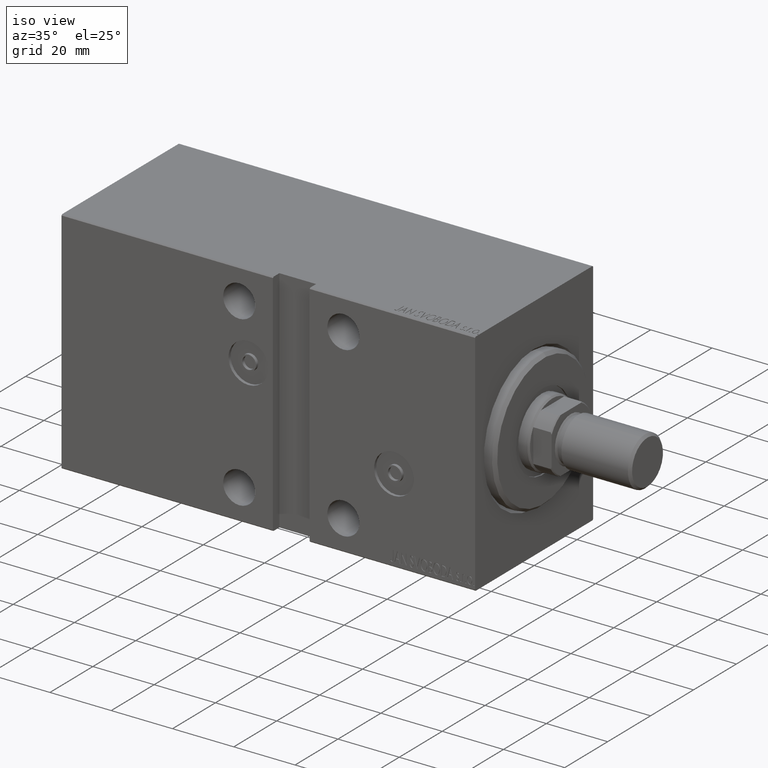
[diagram: clean part render]
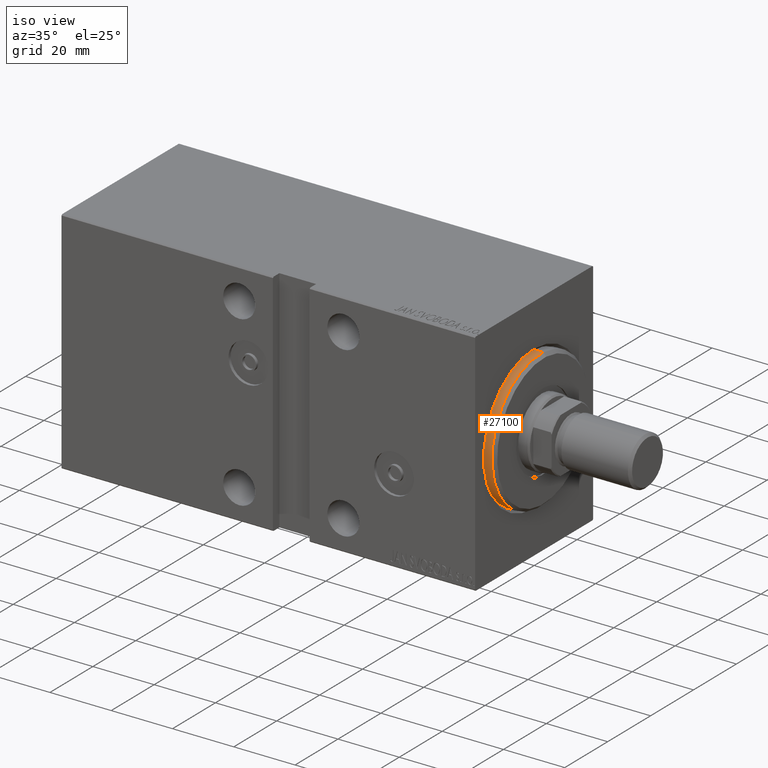
[diagram: same view with one face highlighted and labeled with its STEP entity id]
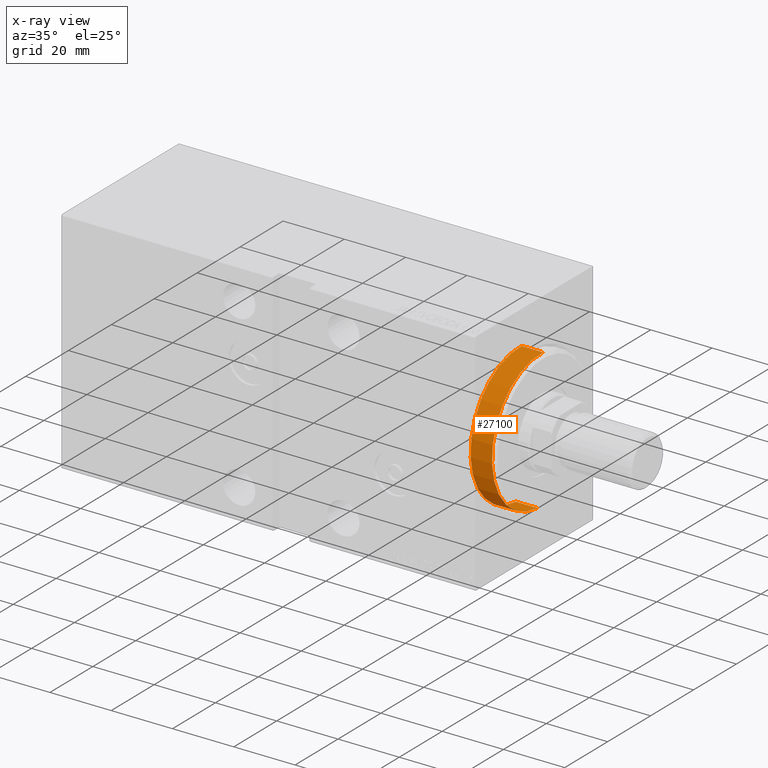
[diagram: x-ray of the same camera — body ghosted, the highlighted face saturated]
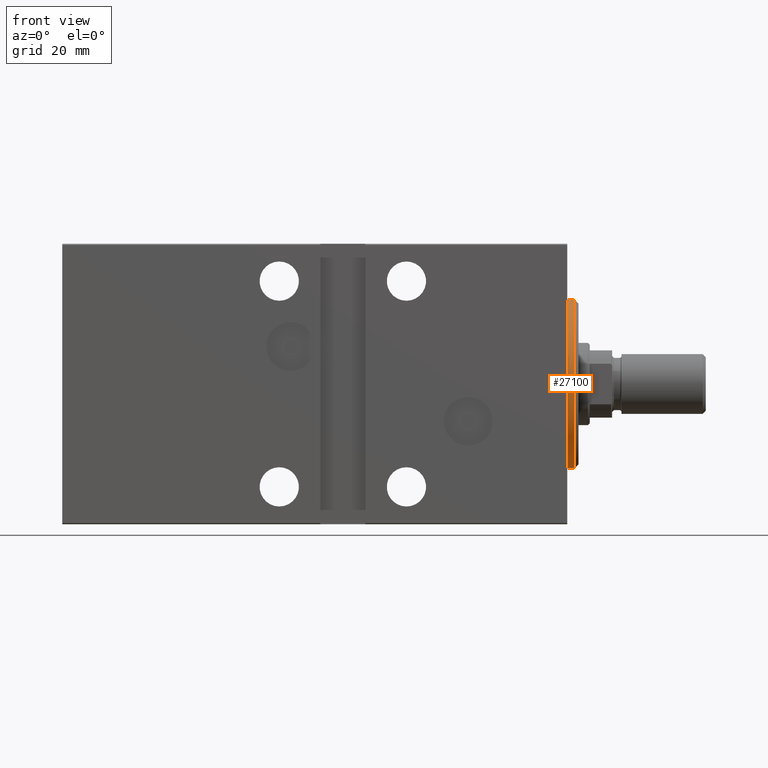
[diagram: same view with one face highlighted and labeled with its STEP entity id]
A machine part, iso view. The second image highlights one B-rep face of the part: STEP entity #27100.
The next image is the same camera in x-ray: the body ghosted, the highlighted face saturated — about 0% of this face is hidden behind the body in this view.
A second angle (front view) of the same face is appended — the face is thin or edge-on in the first view.
In plain terms, the highlighted cylindrical surface (partial cylindrical patch) has radius 22.5 mm, axis along (-1, 0, 0).
Its self-contained STEP definition (entity closure, byte-faithful):
#2188 = DIRECTION ( 'NONE',  ( 0.000000000000000000, 0.000000000000000000, -1.000000000000000000 ) ) ;
#2891 = AXIS2_PLACEMENT_3D ( 'NONE', #7426, #34681, #20850 ) ;
#5337 = VERTEX_POINT ( 'NONE', #24295 ) ;
#6798 = EDGE_CURVE ( 'NONE', #8190, #42109, #30235, .T. ) ;
#7363 = LINE ( 'NONE', #11581, #42997 ) ;
#7426 = CARTESIAN_POINT ( 'NONE',  ( -5.000000000000000000, 0.000000000000000000, 0.000000000000000000 ) ) ;
#7499 = EDGE_CURVE ( 'NONE', #8190, #5337, #16500, .T. ) ;
#7845 = CARTESIAN_POINT ( 'NONE',  ( -5.000000000000000000, 0.000000000000000000, 22.50000000000000355 ) ) ;
#8190 = VERTEX_POINT ( 'NONE', #27493 ) ;
#9242 = DIRECTION ( 'NONE',  ( 0.000000000000000000, 0.000000000000000000, 1.000000000000000000 ) ) ;
#11581 = CARTESIAN_POINT ( 'NONE',  ( 3.000000000000000000, 0.000000000000000000, 22.50000000000000355 ) ) ;
#13250 = FACE_OUTER_BOUND ( 'NONE', #38164, .T. ) ;
#16500 = CIRCLE ( 'NONE', #18632, 22.50000000000000355 ) ;
#18632 = AXIS2_PLACEMENT_3D ( 'NONE', #22326, #26098, #2188 ) ;
#20850 = DIRECTION ( 'NONE',  ( 0.000000000000000000, 0.000000000000000000, 1.000000000000000000 ) ) ;
#22326 = CARTESIAN_POINT ( 'NONE',  ( 1.999999999999999112, 0.000000000000000000, 0.000000000000000000 ) ) ;
#23755 = ORIENTED_EDGE ( 'NONE', *, *, #38312, .F. ) ;
#24295 = CARTESIAN_POINT ( 'NONE',  ( 1.999999999999999112, 0.000000000000000000, 22.50000000000000355 ) ) ;
#26098 = DIRECTION ( 'NONE',  ( -1.000000000000000000, 0.000000000000000000, 0.000000000000000000 ) ) ;
#26240 = AXIS2_PLACEMENT_3D ( 'NONE', #30244, #39853, #9242 ) ;
#26653 = CARTESIAN_POINT ( 'NONE',  ( 3.000000000000000000, 2.755455298081545172E-15, -22.50000000000000355 ) ) ;
#27100 = ADVANCED_FACE ( 'NONE', ( #13250 ), #30458, .T. ) ;
#27493 = CARTESIAN_POINT ( 'NONE',  ( 1.999999999999999112, 2.755455298081545172E-15, -22.50000000000000355 ) ) ;
#30235 = LINE ( 'NONE', #26653, #31457 ) ;
#30244 = CARTESIAN_POINT ( 'NONE',  ( 3.000000000000000000, 0.000000000000000000, 0.000000000000000000 ) ) ;
#30458 = CYLINDRICAL_SURFACE ( 'NONE', #26240, 22.50000000000000355 ) ;
#31457 = VECTOR ( 'NONE', #39629, 1000.000000000000000 ) ;
#34681 = DIRECTION ( 'NONE',  ( -1.000000000000000000, 0.000000000000000000, 0.000000000000000000 ) ) ;
#35477 = DIRECTION ( 'NONE',  ( -1.000000000000000000, -0.000000000000000000, -0.000000000000000000 ) ) ;
#35717 = CIRCLE ( 'NONE', #2891, 22.50000000000000355 ) ;
#36846 = ORIENTED_EDGE ( 'NONE', *, *, #6798, .F. ) ;
#36880 = ORIENTED_EDGE ( 'NONE', *, *, #42786, .T. ) ;
#38164 = EDGE_LOOP ( 'NONE', ( #36846, #40201, #36880, #23755 ) ) ;
#38312 = EDGE_CURVE ( 'NONE', #42109, #43379, #35717, .T. ) ;
#39629 = DIRECTION ( 'NONE',  ( -1.000000000000000000, -0.000000000000000000, -0.000000000000000000 ) ) ;
#39853 = DIRECTION ( 'NONE',  ( -1.000000000000000000, -0.000000000000000000, -0.000000000000000000 ) ) ;
#40201 = ORIENTED_EDGE ( 'NONE', *, *, #7499, .T. ) ;
#42109 = VERTEX_POINT ( 'NONE', #43016 ) ;
#42786 = EDGE_CURVE ( 'NONE', #5337, #43379, #7363, .T. ) ;
#42997 = VECTOR ( 'NONE', #35477, 1000.000000000000000 ) ;
#43016 = CARTESIAN_POINT ( 'NONE',  ( -5.000000000000000000, 2.755455298081545172E-15, -22.50000000000000355 ) ) ;
#43379 = VERTEX_POINT ( 'NONE', #7845 ) ;